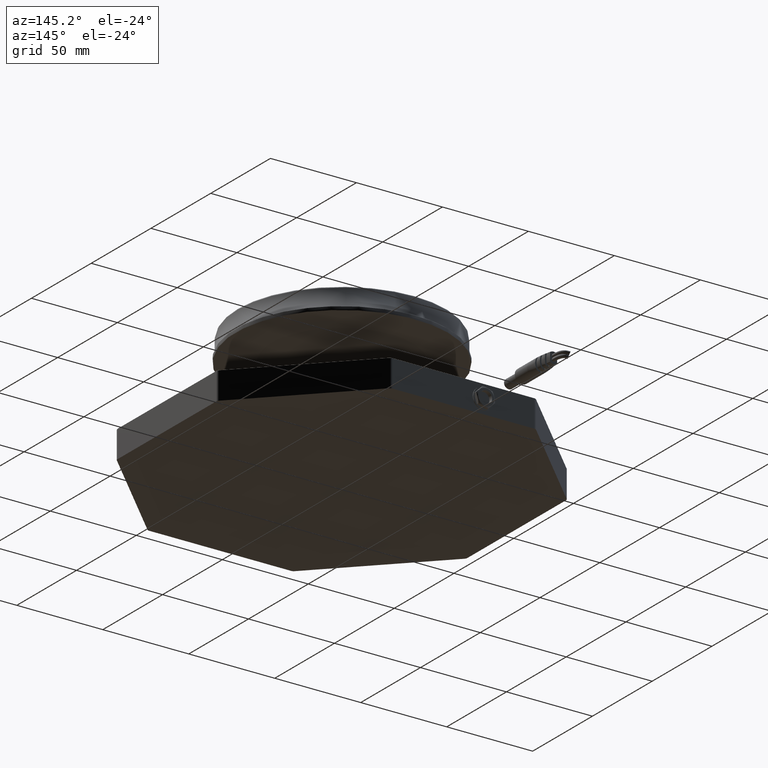
[diagram: clean part render]
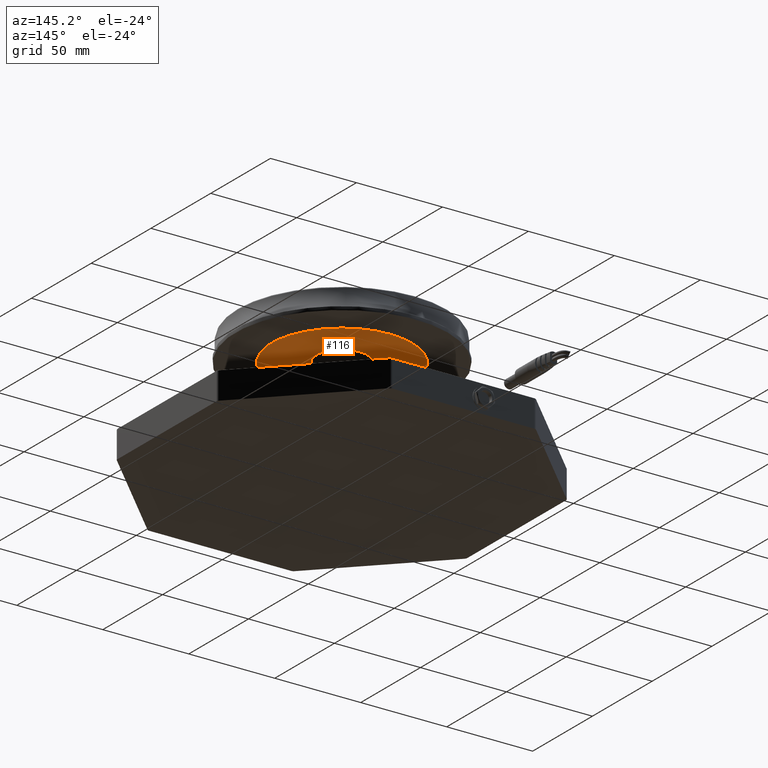
[diagram: same view with one face highlighted and labeled with its STEP entity id]
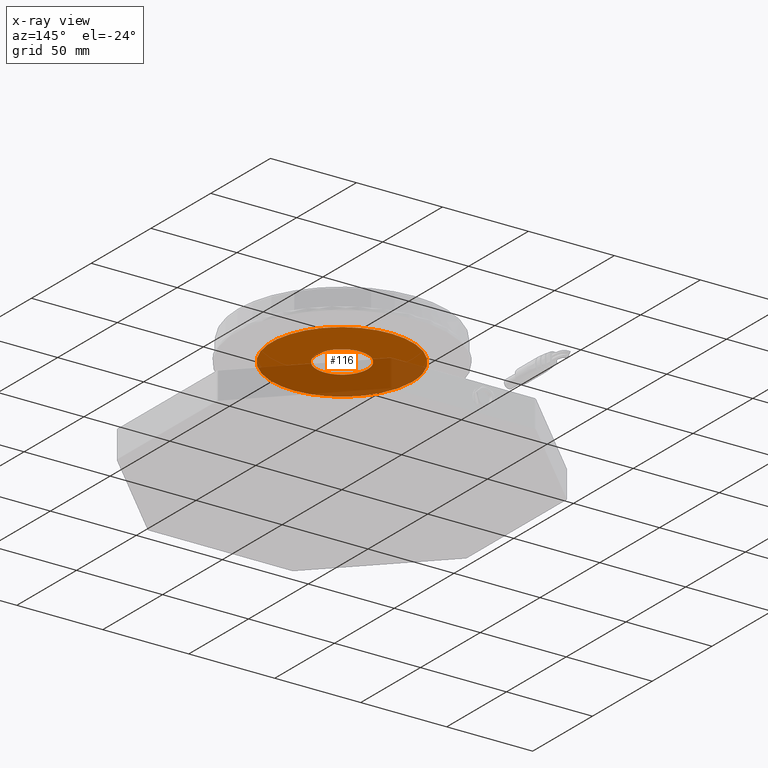
[diagram: x-ray of the same camera — body ghosted, the highlighted face saturated]
A machine part, auxiliary view. The second image highlights one B-rep face of the part: STEP entity #116.
The next image is the same camera in x-ray: the body ghosted, the highlighted face saturated — about 48% of this face is hidden behind the body in this view.
In plain terms, the highlighted face is a freeform B-spline surface patch.
Its self-contained STEP definition (entity closure, byte-faithful):
#116=ADVANCED_FACE('',(#250),#2070,.T.);
#250=FACE_OUTER_BOUND('',#384,.T.);
#384=EDGE_LOOP('',(#542,#543,#544,#545));
#542=ORIENTED_EDGE('',*,*,#1193,.F.);
#543=ORIENTED_EDGE('',*,*,#1200,.T.);
#544=ORIENTED_EDGE('',*,*,#1193,.T.);
#545=ORIENTED_EDGE('',*,*,#1201,.F.);
#1193=EDGE_CURVE('',#1859,#1858,#1612,.T.);
#1200=EDGE_CURVE('',#1859,#1859,#1520,.T.);
#1201=EDGE_CURVE('',#1858,#1858,#1521,.T.);
#1520=(
BOUNDED_CURVE()
B_SPLINE_CURVE(2,(#3099,#3100,#3101,#3102,#3103,#3104,#3105,#3106,#3107),
 .UNSPECIFIED.,.T.,.F.)
B_SPLINE_CURVE_WITH_KNOTS((3,2,2,2,3),(0.,97.1617778100464,194.323555620093,
291.485333430139,388.647111240186),.UNSPECIFIED.)
CURVE()
GEOMETRIC_REPRESENTATION_ITEM()
RATIONAL_B_SPLINE_CURVE((1.,0.707106781186548,1.,0.707106781186548,1.,0.707106781186548,
1.,0.707106781186548,1.))
REPRESENTATION_ITEM('')
);
#1521=(
BOUNDED_CURVE()
B_SPLINE_CURVE(2,(#3108,#3109,#3110,#3111,#3112,#3113,#3114,#3115,#3116),
 .UNSPECIFIED.,.T.,.F.)
B_SPLINE_CURVE_WITH_KNOTS((3,2,2,2,3),(0.,97.1617778100464,194.323555620093,
291.485333430139,388.647111240186),.UNSPECIFIED.)
CURVE()
GEOMETRIC_REPRESENTATION_ITEM()
RATIONAL_B_SPLINE_CURVE((1.,0.707106781186548,1.,0.707106781186548,1.,0.707106781186548,
1.,0.707106781186548,1.))
REPRESENTATION_ITEM('')
);
#1612=B_SPLINE_CURVE_WITH_KNOTS('',1,(#3063,#3064),.UNSPECIFIED.,.F.,.F.,
(2,2),(12.2498890110476,38.249888752932),.UNSPECIFIED.);
#1858=VERTEX_POINT('',#2985);
#1859=VERTEX_POINT('',#2986);
#2070=(
BOUNDED_SURFACE()
B_SPLINE_SURFACE(2,1,((#2348,#2349),(#2350,#2351),(#2352,#2353),(#2354,
#2355),(#2356,#2357),(#2358,#2359),(#2360,#2361),(#2362,#2363),(#2364,#2365)),
 .UNSPECIFIED.,.T.,.F.,.F.)
B_SPLINE_SURFACE_WITH_KNOTS((3,2,2,2,3),(2,2),(0.,97.1617778100464,194.323555620093,
291.485333430139,388.647111240186),(12.2498890110476,38.249888752932),
 .UNSPECIFIED.)
GEOMETRIC_REPRESENTATION_ITEM()
RATIONAL_B_SPLINE_SURFACE(((1.,1.),(0.707106781186548,0.707106781186548),
(1.,1.),(0.707106781186548,0.707106781186548),(1.,1.),(0.707106781186548,
0.707106781186548),(1.,1.),(0.707106781186548,0.707106781186548),(1.,1.)))
REPRESENTATION_ITEM('')
SURFACE()
);
#2348=CARTESIAN_POINT('',(-14.9999998510872,-1.05948236295283E-15,61.49));
#2349=CARTESIAN_POINT('',(-40.9999997964858,-2.42861286636753E-15,61.4900000000024));
#2350=CARTESIAN_POINT('',(-14.9999998510872,-14.8570593761023,61.49));
#2351=CARTESIAN_POINT('',(-40.9999997964858,-40.8569891114607,61.4900000000024));
#2352=CARTESIAN_POINT('',(-0.142980594782518,-14.8570593761023,61.5245271316822));
#2353=CARTESIAN_POINT('',(-0.143121014673432,-40.8569891114607,61.5849497883475));
#2354=CARTESIAN_POINT('',(14.7140386615221,-14.8570593761023,61.5590542633644));
#2355=CARTESIAN_POINT('',(40.7137577671389,-40.8569891114607,61.6798995766925));
#2356=CARTESIAN_POINT('',(14.7140386615221,-7.5998265801575E-16,61.5590542633644));
#2357=CARTESIAN_POINT('',(40.7137577671389,-2.57492522744733E-15,61.6798995766925));
#2358=CARTESIAN_POINT('',(14.7140386615221,14.8570593761023,61.5590542633644));
#2359=CARTESIAN_POINT('',(40.7137577671389,40.8569891114607,61.6798995766925));
#2360=CARTESIAN_POINT('',(-0.142980594782516,14.8570593761023,61.5245271316822));
#2361=CARTESIAN_POINT('',(-0.143121014673427,40.8569891114607,61.5849497883475));
#2362=CARTESIAN_POINT('',(-14.9999998510872,14.8570593761023,61.49));
#2363=CARTESIAN_POINT('',(-40.9999997964858,40.8569891114607,61.4900000000024));
#2364=CARTESIAN_POINT('',(-14.9999998510872,-1.05948236295283E-15,61.49));
#2365=CARTESIAN_POINT('',(-40.9999997964858,-2.42861286636753E-15,61.4900000000024));
#2985=CARTESIAN_POINT('',(-40.9999997964858,-2.42861286636753E-15,61.4900000000024));
#2986=CARTESIAN_POINT('',(-14.9999998510872,-1.05948236295283E-15,61.49));
#3063=CARTESIAN_POINT('',(-14.9999998510872,-1.05948236295283E-15,61.49));
#3064=CARTESIAN_POINT('',(-40.9999997964858,-2.42861286636753E-15,61.4900000000024));
#3099=CARTESIAN_POINT('',(-14.9999998510872,-1.05948236295283E-15,61.49));
#3100=CARTESIAN_POINT('',(-14.9999998510872,-14.8570593761023,61.49));
#3101=CARTESIAN_POINT('',(-0.142980594782518,-14.8570593761023,61.5245271316822));
#3102=CARTESIAN_POINT('',(14.7140386615221,-14.8570593761023,61.5590542633644));
#3103=CARTESIAN_POINT('',(14.7140386615221,-7.59982658015751E-16,61.5590542633644));
#3104=CARTESIAN_POINT('',(14.7140386615221,14.8570593761023,61.5590542633644));
#3105=CARTESIAN_POINT('',(-0.142980594782516,14.8570593761023,61.5245271316822));
#3106=CARTESIAN_POINT('',(-14.9999998510872,14.8570593761023,61.49));
#3107=CARTESIAN_POINT('',(-14.9999998510872,-1.05948236295283E-15,61.49));
#3108=CARTESIAN_POINT('',(-40.9999997964858,-2.42861286636753E-15,61.4900000000024));
#3109=CARTESIAN_POINT('',(-40.9999997964858,-40.8569891114607,61.4900000000024));
#3110=CARTESIAN_POINT('',(-0.143121014673432,-40.8569891114607,61.5849497883475));
#3111=CARTESIAN_POINT('',(40.7137577671389,-40.8569891114607,61.6798995766925));
#3112=CARTESIAN_POINT('',(40.7137577671389,-2.57492522744733E-15,61.6798995766925));
#3113=CARTESIAN_POINT('',(40.7137577671389,40.8569891114607,61.6798995766925));
#3114=CARTESIAN_POINT('',(-0.143121014673427,40.8569891114607,61.5849497883475));
#3115=CARTESIAN_POINT('',(-40.9999997964858,40.8569891114607,61.4900000000024));
#3116=CARTESIAN_POINT('',(-40.9999997964858,-2.42861286636753E-15,61.4900000000024));